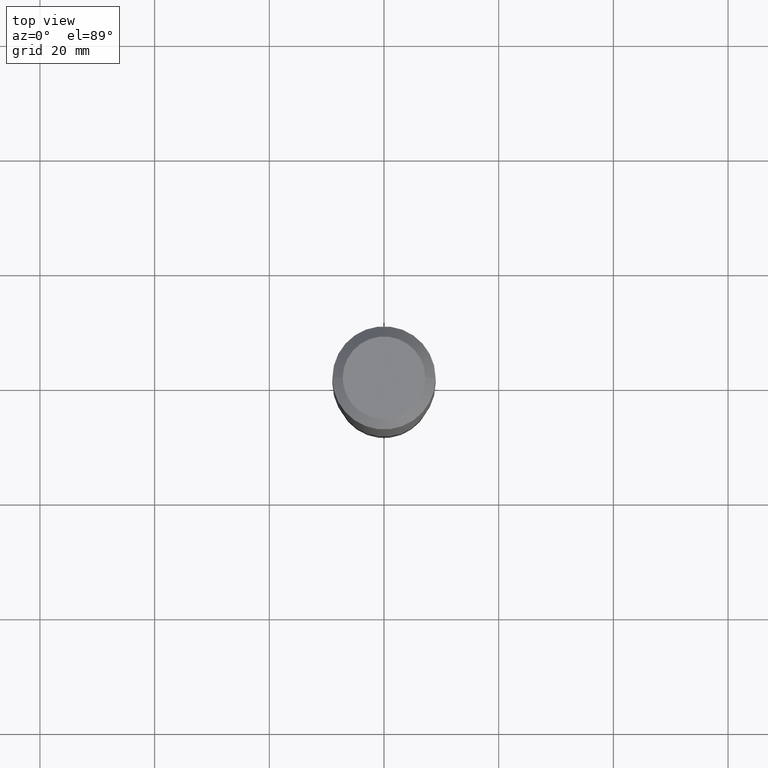
[diagram: clean part render]
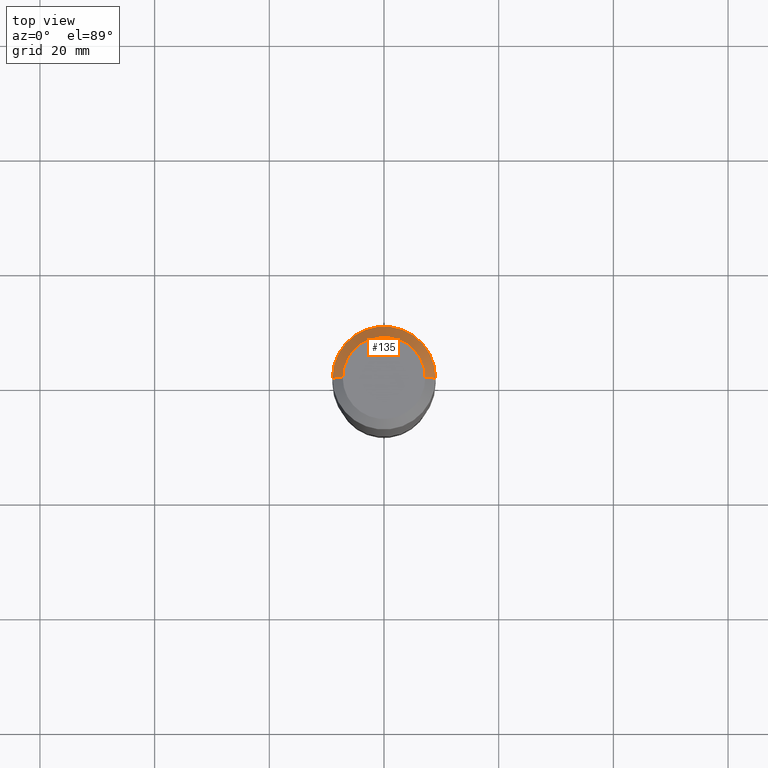
[diagram: same view with one face highlighted and labeled with its STEP entity id]
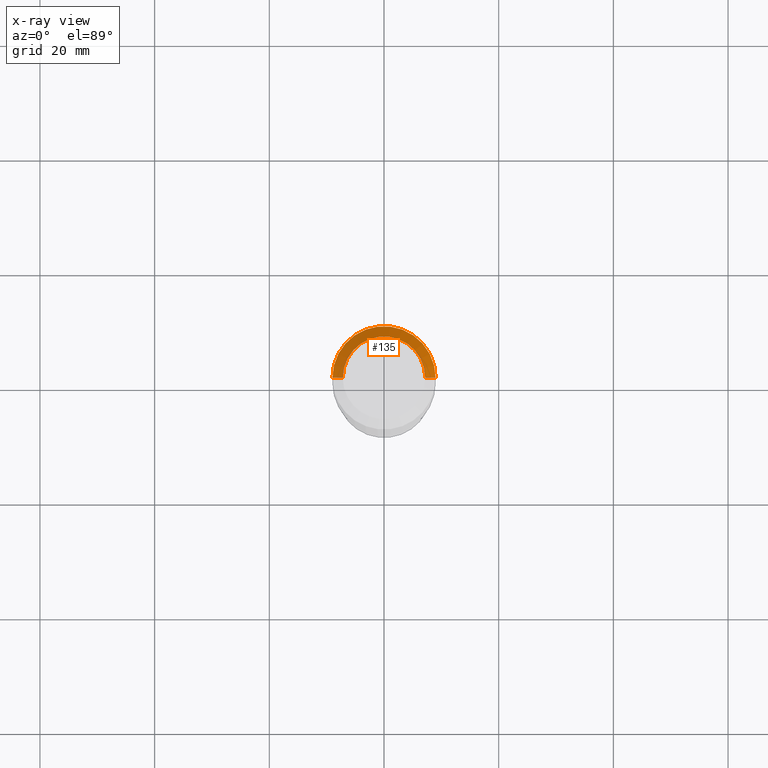
[diagram: x-ray of the same camera — body ghosted, the highlighted face saturated]
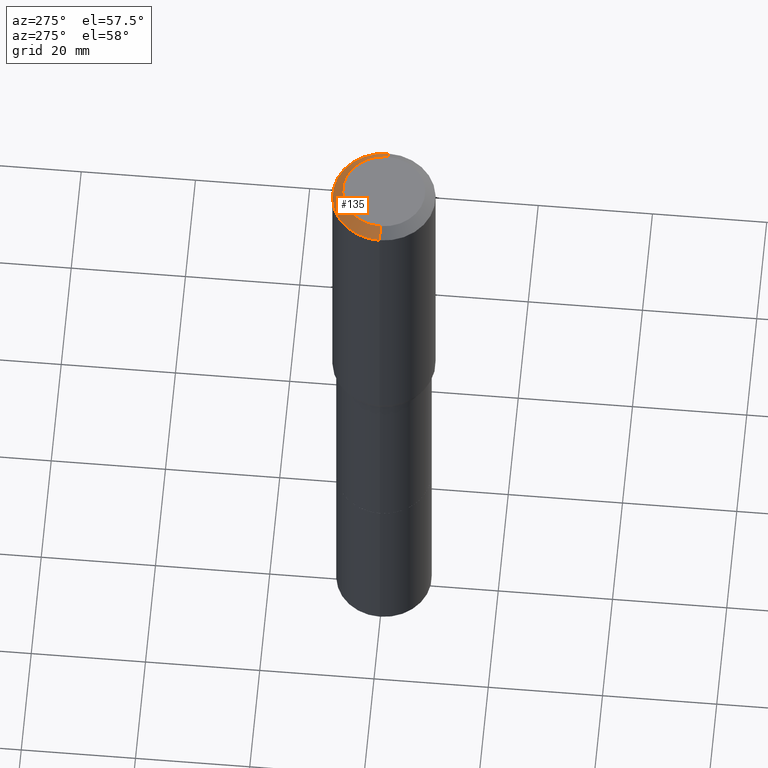
[diagram: same view with one face highlighted and labeled with its STEP entity id]
A machine part, top view. The second image highlights one B-rep face of the part: STEP entity #135.
The next image is the same camera in x-ray: the body ghosted, the highlighted face saturated — about 0% of this face is hidden behind the body in this view.
A second angle (auxiliary view) of the same face is appended — the face is thin or edge-on in the first view.
In plain terms, the highlighted conical surface has half-angle 45 deg.
Its self-contained STEP definition (entity closure, byte-faithful):
#18 = CARTESIAN_POINT ( 'NONE',  ( 1.733103742943416361E-30, -2.474412824838151867E-16, -0.07087000000000041877 ) ) ;
#47 = EDGE_CURVE ( 'NONE', #443, #466, #390, .T. ) ;
#52 = EDGE_CURVE ( 'NONE', #422, #452, #477, .T. ) ;
#61 = CARTESIAN_POINT ( 'NONE',  ( 0.2834800000000000098, -2.311636360201216027E-15, 3.860086710927458874E-18 ) ) ;
#62 = CARTESIAN_POINT ( 'NONE',  ( 1.733103742943416361E-30, -2.474412824838151867E-16, -0.07087000000000041877 ) ) ;
#73 = CIRCLE ( 'NONE', #451, 0.3543499999999999983 ) ;
#107 = DIRECTION ( 'NONE',  ( -2.445468806185136597E-29, 3.491481338843145583E-15, 1.000000000000000000 ) ) ;
#117 = CARTESIAN_POINT ( 'NONE',  ( -0.3543499999999999983, 2.226971542354313655E-15, -0.07087000000000041877 ) ) ;
#126 = ORIENTED_EDGE ( 'NONE', *, *, #180, .F. ) ;
#135 = ADVANCED_FACE ( 'NONE', ( #375 ), #176, .T. ) ;
#151 = AXIS2_PLACEMENT_3D ( 'NONE', #417, #253, #414 ) ;
#173 = CARTESIAN_POINT ( 'NONE',  ( -0.3543499999999999983, -1.419722959637687608E-15, -0.07087000000000041877 ) ) ;
#176 = CONICAL_SURFACE ( 'NONE', #515, 0.3543499999999999983, 0.7853981633974453924 ) ;
#180 = EDGE_CURVE ( 'NONE', #443, #422, #188, .T. ) ;
#188 = CIRCLE ( 'NONE', #151, 0.2834800000000000098 ) ;
#223 = VECTOR ( 'NONE', #318, 39.37007874015748143 ) ;
#253 = DIRECTION ( 'NONE',  ( -2.445468806185136597E-29, 3.491481338843145583E-15, 1.000000000000000000 ) ) ;
#259 = ORIENTED_EDGE ( 'NONE', *, *, #47, .T. ) ;
#318 = DIRECTION ( 'NONE',  ( 0.7071067811865454633, -7.319954787623248157E-15, -0.7071067811865495711 ) ) ;
#322 = CARTESIAN_POINT ( 'NONE',  ( 0.3543499999999999983, -2.678458747994157430E-15, -0.07087000000000041877 ) ) ;
#345 = DIRECTION ( 'NONE',  ( 1.000000000000000000, -6.982962677686266711E-15, 0.000000000000000000 ) ) ;
#350 = CARTESIAN_POINT ( 'NONE',  ( 0.3543499999999999983, -2.721854107321943733E-15, -0.07087000000000041877 ) ) ;
#375 = FACE_OUTER_BOUND ( 'NONE', #437, .T. ) ;
#390 = LINE ( 'NONE', #322, #223 ) ;
#413 = CARTESIAN_POINT ( 'NONE',  ( -0.2834800000000000098, 2.103250901112408108E-15, 3.860086710898179346E-18 ) ) ;
#414 = DIRECTION ( 'NONE',  ( 1.000000000000000000, -6.982962677686266711E-15, 4.876249319814053138E-29 ) ) ;
#417 = CARTESIAN_POINT ( 'NONE',  ( -9.439721640706191963E-47, 1.347742071746725396E-32, 3.860086710912455110E-18 ) ) ;
#422 = VERTEX_POINT ( 'NONE', #413 ) ;
#427 = DIRECTION ( 'NONE',  ( -0.7071067811865454633, 2.468850131082235367E-15, -0.7071067811865495711 ) ) ;
#437 = EDGE_LOOP ( 'NONE', ( #126, #259, #462, #503 ) ) ;
#442 = EDGE_CURVE ( 'NONE', #466, #452, #73, .T. ) ;
#443 = VERTEX_POINT ( 'NONE', #61 ) ;
#445 = DIRECTION ( 'NONE',  ( -1.000000000000000000, 6.982962677686266711E-15, 0.000000000000000000 ) ) ;
#447 = VECTOR ( 'NONE', #427, 39.37007874015748143 ) ;
#451 = AXIS2_PLACEMENT_3D ( 'NONE', #62, #107, #345 ) ;
#452 = VERTEX_POINT ( 'NONE', #173 ) ;
#462 = ORIENTED_EDGE ( 'NONE', *, *, #442, .T. ) ;
#466 = VERTEX_POINT ( 'NONE', #350 ) ;
#477 = LINE ( 'NONE', #117, #447 ) ;
#491 = DIRECTION ( 'NONE',  ( 2.445468806185136597E-29, -3.491481338843145583E-15, -1.000000000000000000 ) ) ;
#503 = ORIENTED_EDGE ( 'NONE', *, *, #52, .F. ) ;
#515 = AXIS2_PLACEMENT_3D ( 'NONE', #18, #491, #445 ) ;